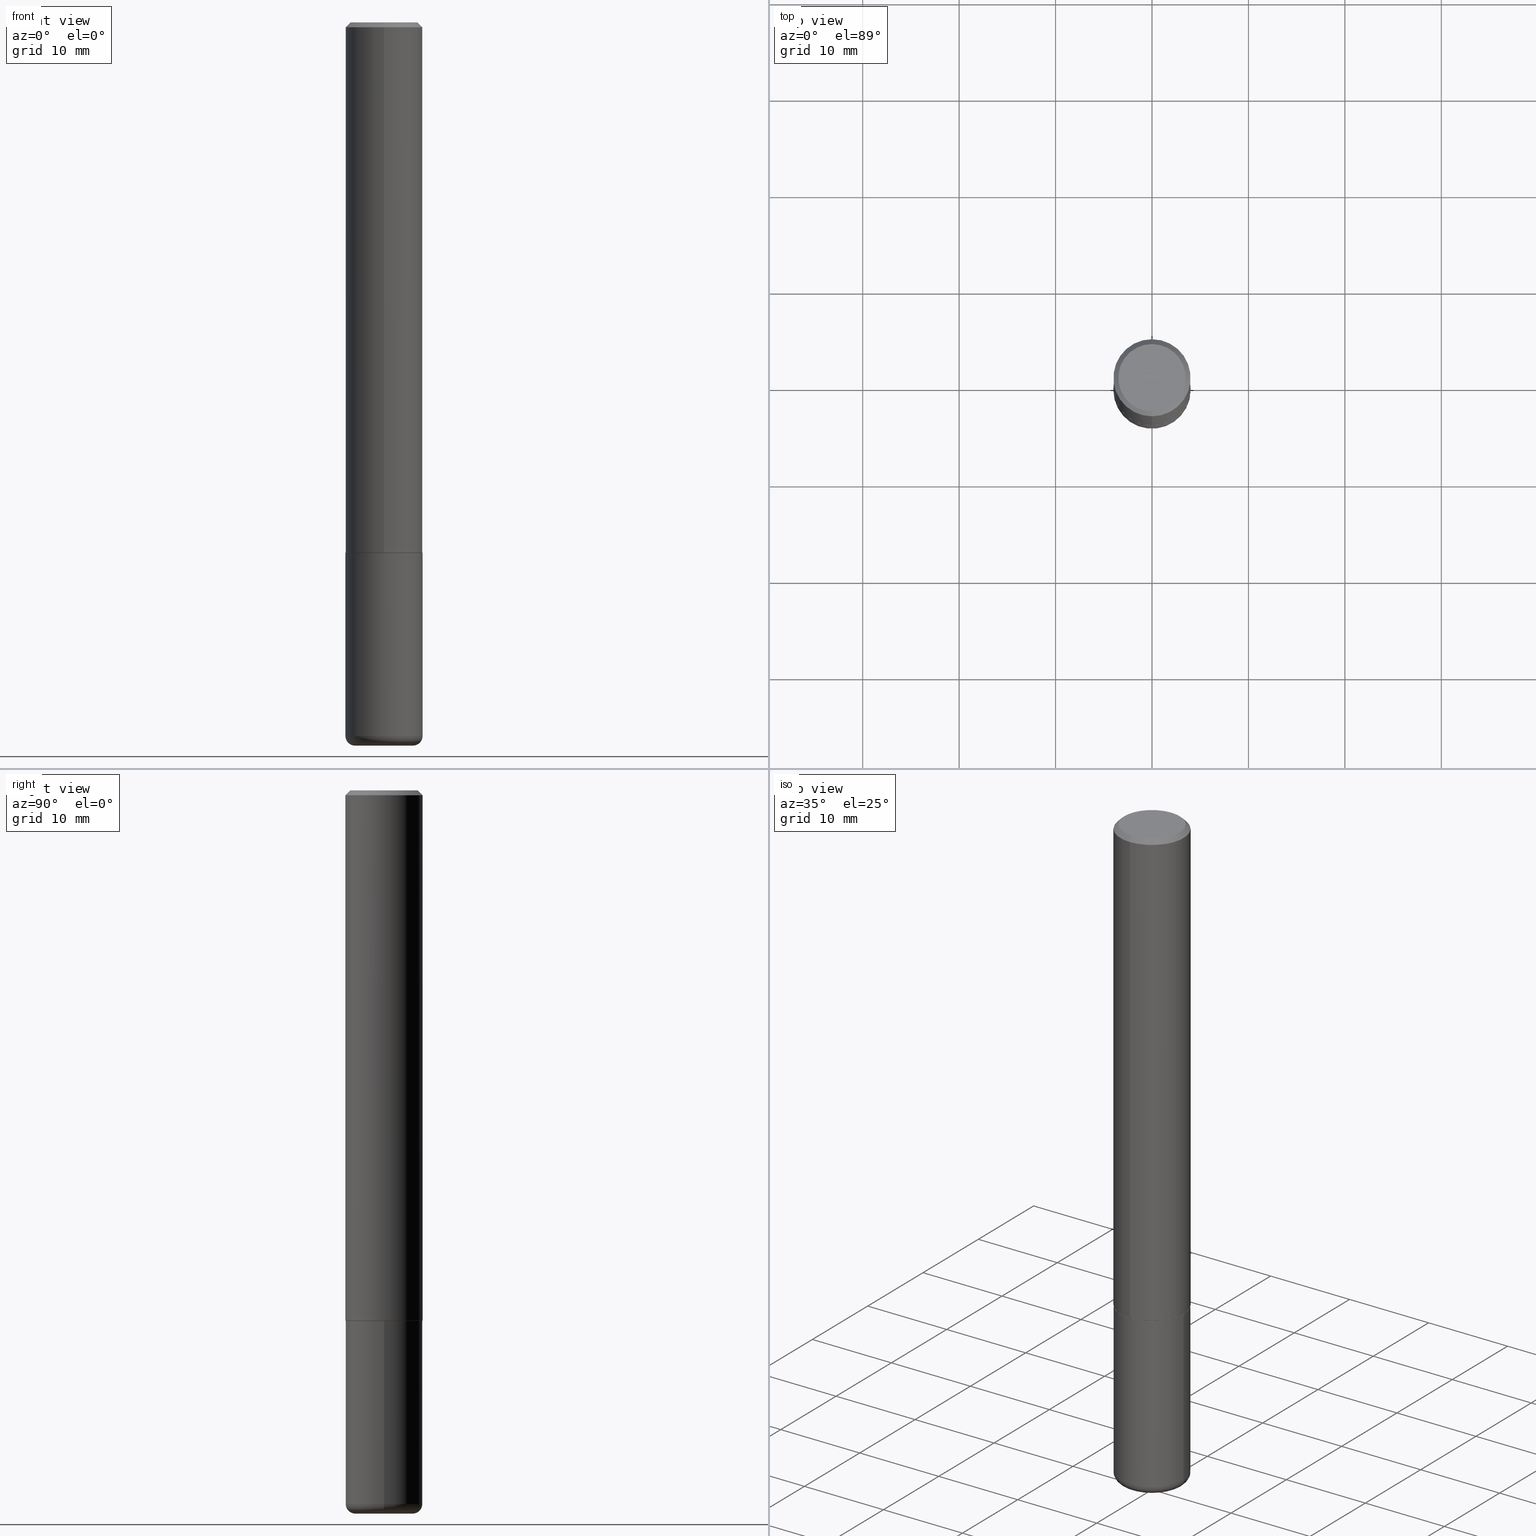
[diagram: canonical four-view strip — front | top / right | iso, engineering-drawing reading convention]
A machine part, canonical four-view strip (front | top / right | iso — engineering-drawing reading convention). The complete STEP part file that produces these views, byte-faithful:
ISO-10303-21;
HEADER;
FILE_DESCRIPTION (( 'STEP AP203' ),
    '1' );
FILE_NAME ('74359.STEP',
    '2024-03-06T15:08:57',
    ( '' ),
    ( '' ),
    'SwSTEP 2.0',
    'SolidWorks 2023',
    '' );
FILE_SCHEMA (( 'CONFIG_CONTROL_DESIGN' ));
ENDSEC;

DATA;
#1 = ORIENTED_EDGE ( 'NONE', *, *, #279, .T. ) ;
#2 = AXIS2_PLACEMENT_3D ( 'NONE', #182, #184, #248 ) ;
#3 = VERTEX_POINT ( 'NONE', #255 ) ;
#4 = APPROVAL ( #273, 'UNSPECIFIED' ) ;
#5 = DIRECTION ( 'NONE',  ( 0.000000000000000000, 0.000000000000000000, 1.000000000000000000 ) ) ;
#6 = CARTESIAN_POINT ( 'NONE',  ( 0.000000000000000000, 0.000000000000000000, 0.000000000000000000 ) ) ;
#7 = SHAPE_DEFINITION_REPRESENTATION ( #225, #159 ) ;
#8 = CYLINDRICAL_SURFACE ( 'NONE', #102, 0.1575000000000000011 ) ;
#9 = DIRECTION ( 'NONE',  ( -2.445468806185136597E-29, 3.491481338843145583E-15, 1.000000000000000000 ) ) ;
#10 = CIRCLE ( 'NONE', #343, 0.1180999999999999966 ) ;
#11 = COORDINATED_UNIVERSAL_TIME_OFFSET ( 5, 0, .BEHIND. ) ;
#12 = AXIS2_PLACEMENT_3D ( 'NONE', #355, #5, #387 ) ;
#13 = FACE_OUTER_BOUND ( 'NONE', #285, .T. ) ;
#14 = DIRECTION ( 'NONE',  ( -1.000000000000000000, 7.105427357601014480E-15, 0.000000000000000000 ) ) ;
#15 = PERSON_AND_ORGANIZATION_ROLE ( 'design_supplier' ) ;
#16 = FACE_OUTER_BOUND ( 'NONE', #386, .T. ) ;
#17 = DIRECTION ( 'NONE',  ( -6.982962677686265133E-15, -1.000000000000000000, 3.469013325287946588E-15 ) ) ;
#18 = DIRECTION ( 'NONE',  ( -2.445468806185136597E-29, 3.491481338843145583E-15, 1.000000000000000000 ) ) ;
#19 = ADVANCED_FACE ( 'NONE', ( #65 ), #319, .T. ) ;
#20 = DIRECTION ( 'NONE',  ( -2.444928043019069804E-29, 3.492255742475281487E-15, 1.000000000000000000 ) ) ;
#21 = AXIS2_PLACEMENT_3D ( 'NONE', #270, #399, #237 ) ;
#22 = ORGANIZATION ( 'UNSPECIFIED', 'UNSPECIFIED', '' ) ;
#23 = DIRECTION ( 'NONE',  ( -2.445468806185136877E-29, 3.491481338843145188E-15, 1.000000000000000000 ) ) ;
#24 = CARTESIAN_POINT ( 'NONE',  ( 7.220980290903470182E-29, -1.030964609733603853E-14, -2.952799999999999869 ) ) ;
#25 = ADVANCED_FACE ( 'NONE', ( #176 ), #396, .T. ) ;
#26 = ORIENTED_EDGE ( 'NONE', *, *, #55, .T. ) ;
#27 = VECTOR ( 'NONE', #47, 39.37007874015748143 ) ;
#28 = EDGE_LOOP ( 'NONE', ( #68, #294, #413, #349 ) ) ;
#29 = CC_DESIGN_PERSON_AND_ORGANIZATION_ASSIGNMENT ( #38, #15, ( #69 ) ) ;
#30 = AXIS2_PLACEMENT_3D ( 'NONE', #275, #278, #404 ) ;
#31 = ORIENTED_EDGE ( 'NONE', *, *, #260, .T. ) ;
#32 = SECURITY_CLASSIFICATION ( '', '', #78 ) ;
#33 = ORIENTED_EDGE ( 'NONE', *, *, #143, .F. ) ;
#34 = ORIENTED_EDGE ( 'NONE', *, *, #51, .F. ) ;
#35 = APPLICATION_PROTOCOL_DEFINITION ( 'international standard', 'config_control_design', 1994, #389 ) ;
#36 = ORIENTED_EDGE ( 'NONE', *, *, #198, .F. ) ;
#37 = ADVANCED_FACE ( 'NONE', ( #120 ), #8, .T. ) ;
#38 = PERSON_AND_ORGANIZATION ( #61, #22 ) ;
#39 = EDGE_LOOP ( 'NONE', ( #288, #161, #33, #415 ) ) ;
#40 = CARTESIAN_POINT ( 'NONE',  ( -1.092833659057847823E-15, -0.1565000000000075497, -2.165399999999999103 ) ) ;
#41 = CARTESIAN_POINT ( 'NONE',  ( -1.080528434649015779E-15, -0.1575000000000000844, -0.01999999999999948347 ) ) ;
#42 = CC_DESIGN_DATE_AND_TIME_ASSIGNMENT ( #236, #362, ( #122 ) ) ;
#43 = PERSON_AND_ORGANIZATION ( #61, #22 ) ;
#44 = DIRECTION ( 'NONE',  ( 1.000000000000000000, -6.982962677686265922E-15, 4.876176775795935232E-29 ) ) ;
#45 = CARTESIAN_POINT ( 'NONE',  ( 0.1575000000000000289, -1.127189835432120758E-14, -2.913399999999999768 ) ) ;
#46 = AXIS2_PLACEMENT_3D ( 'NONE', #141, #207, #79 ) ;
#47 = DIRECTION ( 'NONE',  ( -4.937700262165138110E-15, -0.7071067811866296182, 0.7071067811864654162 ) ) ;
#48 = FACE_OUTER_BOUND ( 'NONE', #226, .T. ) ;
#49 = EDGE_CURVE ( 'NONE', #100, #3, #405, .T. ) ;
#50 = CARTESIAN_POINT ( 'NONE',  ( 4.889856086038147210E-31, -6.984511484950574659E-17, -0.02000000000000003511 ) ) ;
#51 = EDGE_CURVE ( 'NONE', #167, #417, #318, .T. ) ;
#52 = DIRECTION ( 'NONE',  ( -2.445468806185136597E-29, 3.491481338843145583E-15, 1.000000000000000000 ) ) ;
#53 = DIRECTION ( 'NONE',  ( -6.982962677686266711E-15, -1.000000000000000000, 3.491481338843145583E-15 ) ) ;
#54 = CARTESIAN_POINT ( 'NONE',  ( 5.294247184353492784E-29, -7.562130584755974132E-15, -2.165399999999999991 ) ) ;
#55 = EDGE_CURVE ( 'NONE', #321, #323, #145, .T. ) ;
#56 = UNCERTAINTY_MEASURE_WITH_UNIT (LENGTH_MEASURE( 1.000000000000000082E-05 ), #134, 'distance_accuracy_value', 'NONE');
#57 = CARTESIAN_POINT ( 'NONE',  ( 5.291802256310474180E-29, -7.558638329013498276E-15, -2.164399999999999658 ) ) ;
#58 = AXIS2_PLACEMENT_3D ( 'NONE', #304, #307, #14 ) ;
#59 = LOCAL_TIME ( 10, 8, 57.00000000000000000, #262 ) ;
#60 = ADVANCED_FACE ( 'NONE', ( #391 ), #303, .T. ) ;
#61 = PERSON ( 'UNSPECIFIED', 'UNSPECIFIED', 'UNSPECIFIED', ('UNSPECIFIED'), ('UNSPECIFIED'), ('UNSPECIFIED') ) ;
#62 = TOROIDAL_SURFACE ( 'NONE', #245, 0.1180999999999999966, 0.03940000000000005997 ) ;
#63 = ORIENTED_EDGE ( 'NONE', *, *, #279, .F. ) ;
#64 = APPLICATION_PROTOCOL_DEFINITION ( 'international standard', 'config_control_design', 1994, #238 ) ;
#65 = FACE_OUTER_BOUND ( 'NONE', #378, .T. ) ;
#66 = LENGTH_MEASURE_WITH_UNIT ( LENGTH_MEASURE( 0.02539999999999999897 ), #227 );
#67 = AXIS2_PLACEMENT_3D ( 'NONE', #87, #110, #148 ) ;
#68 = ORIENTED_EDGE ( 'NONE', *, *, #266, .T. ) ;
#69 = PRODUCT_DEFINITION_FORMATION_WITH_SPECIFIED_SOURCE ( 'ANY', '', #83, .NOT_KNOWN. ) ;
#70 = DIRECTION ( 'NONE',  ( -2.444928043019069804E-29, 3.492255742475281487E-15, 1.000000000000000000 ) ) ;
#71 = ORIENTED_EDGE ( 'NONE', *, *, #266, .F. ) ;
#72 = DIRECTION ( 'NONE',  ( -6.982962677686264344E-15, -1.000000000000000000, 3.496114991891764787E-15 ) ) ;
#73 = ORIENTED_EDGE ( 'NONE', *, *, #410, .F. ) ;
#74 = PERSON_AND_ORGANIZATION ( #61, #22 ) ;
#75 = ORIENTED_EDGE ( 'NONE', *, *, #210, .F. ) ;
#76 = CIRCLE ( 'NONE', #95, 0.1565000000000000002 ) ;
#77 = APPROVAL_PERSON_ORGANIZATION ( #203, #4, #206 ) ;
#78 = SECURITY_CLASSIFICATION_LEVEL ( 'unclassified' ) ;
#79 = DIRECTION ( 'NONE',  ( -6.982962677686265133E-15, -1.000000000000000000, 3.469013325287946588E-15 ) ) ;
#80 = PERSON_AND_ORGANIZATION_ROLE ( 'creator' ) ;
#81 = DIRECTION ( 'NONE',  ( 2.438088387897960049E-29, -3.491481338843145188E-15, -1.000000000000000000 ) ) ;
#82 = DIRECTION ( 'NONE',  ( 5.024295867788662713E-15, 0.7071067811866345032, 0.7071067811864605313 ) ) ;
#83 = PRODUCT ( '74359', '74359', '', ( #150 ) ) ;
#84 = DIRECTION ( 'NONE',  ( 1.000000000000000000, -6.982962677686271444E-15, 4.883557194083114583E-29 ) ) ;
#85 = CARTESIAN_POINT ( 'NONE',  ( -0.1575000000000000289, -9.052976923763463288E-15, -2.913399999999999768 ) ) ;
#86 = AXIS2_PLACEMENT_3D ( 'NONE', #54, #187, #155 ) ;
#87 = CARTESIAN_POINT ( 'NONE',  ( 5.294247184353492784E-29, -7.562130584755974132E-15, -2.165399999999999991 ) ) ;
#88 = DESIGN_CONTEXT ( 'detailed design', #389, 'design' ) ;
#89 = CARTESIAN_POINT ( 'NONE',  ( 4.889856086038147210E-31, -6.984511484950574659E-17, -0.02000000000000003511 ) ) ;
#90 = DIRECTION ( 'NONE',  ( 4.937700262164546464E-15, 0.7071067811865447972, -0.7071067811865500152 ) ) ;
#91 = DIRECTION ( 'NONE',  ( -2.444928043019069524E-29, 3.492255742475281487E-15, 1.000000000000000000 ) ) ;
#92 = DIRECTION ( 'NONE',  ( 1.000000000000000000, -6.982962677686267499E-15, 0.000000000000000000 ) ) ;
#93 = ORIENTED_EDGE ( 'NONE', *, *, #301, .F. ) ;
#94 = DIRECTION ( 'NONE',  ( -6.982962677686264344E-15, -1.000000000000000000, 3.496114991891764787E-15 ) ) ;
#95 = AXIS2_PLACEMENT_3D ( 'NONE', #397, #409, #217 ) ;
#96 = AXIS2_PLACEMENT_3D ( 'NONE', #401, #52, #375 ) ;
#97 = ADVANCED_FACE ( 'NONE', ( #13 ), #334, .T. ) ;
#98 = ORIENTED_EDGE ( 'NONE', *, *, #271, .F. ) ;
#99 = ADVANCED_FACE ( 'NONE', ( #16 ), #358, .T. ) ;
#100 = VERTEX_POINT ( 'NONE', #330 ) ;
#101 = ORIENTED_EDGE ( 'NONE', *, *, #55, .F. ) ;
#102 = AXIS2_PLACEMENT_3D ( 'NONE', #306, #115, #44 ) ;
#103 = ORIENTED_EDGE ( 'NONE', *, *, #260, .F. ) ;
#104 = ADVANCED_FACE ( 'NONE', ( #151 ), #219, .T. ) ;
#105 = CARTESIAN_POINT ( 'NONE',  ( 4.889856086038147210E-31, -6.984511484950574659E-17, -0.02000000000000003511 ) ) ;
#106 = ORIENTED_EDGE ( 'NONE', *, *, #301, .T. ) ;
#107 = MANIFOLD_SOLID_BREP ( 'Body-Move/Copy2[2]', #158 ) ;
#108 = ORIENTED_EDGE ( 'NONE', *, *, #410, .T. ) ;
#109 = APPROVAL_DATE_TIME ( #327, #412 ) ;
#110 = DIRECTION ( 'NONE',  ( -2.444928043019069804E-29, 3.492255742475281487E-15, 1.000000000000000000 ) ) ;
#111 = FACE_OUTER_BOUND ( 'NONE', #28, .T. ) ;
#112 = AXIS2_PLACEMENT_3D ( 'NONE', #57, #20, #17 ) ;
#113 = PERSON_AND_ORGANIZATION ( #61, #22 ) ;
#114 = CARTESIAN_POINT ( 'NONE',  ( 0.1180999999999999966, -1.099676962482036915E-14, -2.913399999999999768 ) ) ;
#115 = DIRECTION ( 'NONE',  ( -2.445468806185136597E-29, 3.491481338843145583E-15, 1.000000000000000000 ) ) ;
#116 = CARTESIAN_POINT ( 'NONE',  ( 9.601573681818600950E-16, 0.1374999999999997891, -3.798218808232814543E-16 ) ) ;
#117 = PERSON_AND_ORGANIZATION_ROLE ( 'design_owner' ) ;
#118 = DIRECTION ( 'NONE',  ( 2.444928043019069804E-29, -3.492255742475281487E-15, -1.000000000000000000 ) ) ;
#119 = CARTESIAN_POINT ( 'NONE',  ( -1.092833659057847823E-15, -0.1565000000000075497, -2.165399999999999103 ) ) ;
#120 = FACE_OUTER_BOUND ( 'NONE', #261, .T. ) ;
#121 = AXIS2_PLACEMENT_3D ( 'NONE', #249, #152, #272 ) ;
#122 = PRODUCT_DEFINITION ( 'UNKNOWN', '', #69, #88 ) ;
#123 = CARTESIAN_POINT ( 'NONE',  ( 5.294247184353492784E-29, -7.562130584755974132E-15, -2.165399999999999991 ) ) ;
#124 = DIRECTION ( 'NONE',  ( -2.444928043019069804E-29, 3.492255742475281487E-15, 1.000000000000000000 ) ) ;
#125 = LINE ( 'NONE', #41, #350 ) ;
#126 = ADVANCED_FACE ( 'NONE', ( #174 ), #267, .F. ) ;
#127 = LOCAL_TIME ( 10, 8, 57.00000000000000000, #11 ) ;
#128 = ADVANCED_FACE ( 'NONE', ( #360 ), #62, .T. ) ;
#129 = VERTEX_POINT ( 'NONE', #209 ) ;
#130 = AXIS2_PLACEMENT_3D ( 'NONE', #244, #363, #298 ) ;
#131 = CC_DESIGN_APPROVAL ( #412, ( #69 ) ) ;
#132 = ORIENTED_EDGE ( 'NONE', *, *, #379, .F. ) ;
#133 = VERTEX_POINT ( 'NONE', #336 ) ;
#134 =( CONVERSION_BASED_UNIT ( 'INCH', #66 ) LENGTH_UNIT ( ) NAMED_UNIT ( #166 ) );
#135 = ORIENTED_EDGE ( 'NONE', *, *, #216, .F. ) ;
#136 = EDGE_CURVE ( 'NONE', #348, #3, #308, .T. ) ;
#137 = AXIS2_PLACEMENT_3D ( 'NONE', #213, #313, #340 ) ;
#138 = ORIENTED_EDGE ( 'NONE', *, *, #373, .F. ) ;
#139 = LOCAL_TIME ( 10, 8, 57.00000000000000000, #269 ) ;
#140 = VERTEX_POINT ( 'NONE', #183 ) ;
#141 = CARTESIAN_POINT ( 'NONE',  ( 5.291802256310474180E-29, -7.558638329013498276E-15, -2.164399999999999658 ) ) ;
#142 = APPROVAL_DATE_TIME ( #390, #162 ) ;
#143 = EDGE_CURVE ( 'NONE', #323, #321, #192, .T. ) ;
#144 = DIRECTION ( 'NONE',  ( -1.000000000000000000, 6.982962677686265922E-15, -4.876176775795935793E-29 ) ) ;
#145 = CIRCLE ( 'NONE', #293, 0.1575000000000000011 ) ;
#146 = FACE_OUTER_BOUND ( 'NONE', #289, .T. ) ;
#147 = DATE_AND_TIME ( #365, #127 ) ;
#148 = DIRECTION ( 'NONE',  ( -6.982962677686265922E-15, -1.000000000000000000, 3.491179544618866730E-15 ) ) ;
#149 = CYLINDRICAL_SURFACE ( 'NONE', #2, 0.1575000000000001676 ) ;
#150 = MECHANICAL_CONTEXT ( 'NONE', #238, 'mechanical' ) ;
#151 = FACE_OUTER_BOUND ( 'NONE', #418, .T. ) ;
#152 = DIRECTION ( 'NONE',  ( -2.445468806185136597E-29, 3.491481338843145583E-15, 1.000000000000000000 ) ) ;
#153 = DIRECTION ( 'NONE',  ( -2.445468806185136597E-29, 3.491481338843145583E-15, 1.000000000000000000 ) ) ;
#154 = VECTOR ( 'NONE', #342, 39.37007874015748143 ) ;
#155 = DIRECTION ( 'NONE',  ( -6.982962677686265922E-15, -1.000000000000000000, 3.491179544618866730E-15 ) ) ;
#156 = CARTESIAN_POINT ( 'NONE',  ( -0.1575000000000000011, 1.119104808822157801E-15, -7.747322767151475583E-30 ) ) ;
#157 = DIRECTION ( 'NONE',  ( 1.000000000000000000, -6.982962677686268288E-15, 0.000000000000000000 ) ) ;
#158 = CLOSED_SHELL ( 'NONE', ( #97, #392, #104, #99, #239, #19, #126, #383 ) ) ;
#159 = ADVANCED_BREP_SHAPE_REPRESENTATION ( '74359', ( #252, #107, #12 ), #191 ) ;
#160 = CC_DESIGN_SECURITY_CLASSIFICATION ( #32, ( #69 ) ) ;
#161 = ORIENTED_EDGE ( 'NONE', *, *, #214, .T. ) ;
#162 = APPROVAL ( #295, 'UNSPECIFIED' ) ;
#163 = VECTOR ( 'NONE', #91, 39.37007874015748143 ) ;
#164 = EDGE_LOOP ( 'NONE', ( #138, #199 ) ) ;
#165 = ORIENTED_EDGE ( 'NONE', *, *, #198, .T. ) ;
#166 = DIMENSIONAL_EXPONENTS ( 1.000000000000000000, 0.000000000000000000, 0.000000000000000000, 0.000000000000000000, 0.000000000000000000, 0.000000000000000000, 0.000000000000000000 ) ;
#167 = VERTEX_POINT ( 'NONE', #406 ) ;
#168 = DATE_TIME_ROLE ( 'classification_date' ) ;
#169 = CIRCLE ( 'NONE', #112, 0.1575000000000003064 ) ;
#170 = AXIS2_PLACEMENT_3D ( 'NONE', #116, #345, #337 ) ;
#171 = ORIENTED_EDGE ( 'NONE', *, *, #51, .T. ) ;
#172 = LOCAL_TIME ( 10, 8, 57.00000000000000000, #333 ) ;
#173 = CALENDAR_DATE ( 2024, 6, 3 ) ;
#174 = FACE_OUTER_BOUND ( 'NONE', #164, .T. ) ;
#175 = APPROVAL_DATE_TIME ( #297, #4 ) ;
#176 = FACE_OUTER_BOUND ( 'NONE', #223, .T. ) ;
#177 = EDGE_CURVE ( 'NONE', #417, #140, #247, .T. ) ;
#178 = DIRECTION ( 'NONE',  ( -4.851104656540962697E-15, -0.7071067811865497932, -0.7071067811865451302 ) ) ;
#179 = COORDINATED_UNIVERSAL_TIME_OFFSET ( 5, 0, .BEHIND. ) ;
#180 = DIRECTION ( 'NONE',  ( 1.000000000000000000, -6.982962677686261977E-15, 0.000000000000000000 ) ) ;
#181 = AXIS2_PLACEMENT_3D ( 'NONE', #403, #265, #395 ) ;
#182 = CARTESIAN_POINT ( 'NONE',  ( 0.000000000000000000, 0.000000000000000000, 0.000000000000000000 ) ) ;
#183 = CARTESIAN_POINT ( 'NONE',  ( 1.099816621735587480E-15, 0.1574999999999999456, -0.02000000000000058328 ) ) ;
#184 = DIRECTION ( 'NONE',  ( -2.444928043019069804E-29, 3.492255742475281487E-15, 1.000000000000000000 ) ) ;
#185 = DIRECTION ( 'NONE',  ( -2.445468806185136597E-29, 3.491481338843145583E-15, 1.000000000000000000 ) ) ;
#186 = DIRECTION ( 'NONE',  ( -2.445468806185136597E-29, 3.491481338843145583E-15, 1.000000000000000000 ) ) ;
#187 = DIRECTION ( 'NONE',  ( -2.444928043019069804E-29, 3.492255742475281487E-15, 1.000000000000000000 ) ) ;
#188 = AXIS2_PLACEMENT_3D ( 'NONE', #205, #81, #144 ) ;
#189 = EDGE_CURVE ( 'NONE', #100, #140, #215, .T. ) ;
#190 = CARTESIAN_POINT ( 'NONE',  ( -1.099816621735587875E-15, -0.1575000000000001676, 5.500302794398574170E-16 ) ) ;
#191 =( GEOMETRIC_REPRESENTATION_CONTEXT ( 3 ) GLOBAL_UNCERTAINTY_ASSIGNED_CONTEXT ( ( #56 ) ) GLOBAL_UNIT_ASSIGNED_CONTEXT ( ( #134, #322, #380 ) ) REPRESENTATION_CONTEXT ( 'NONE', 'WORKASPACE' ) );
#192 = CIRCLE ( 'NONE', #414, 0.1575000000000000011 ) ;
#193 = VERTEX_POINT ( 'NONE', #310 ) ;
#194 = CARTESIAN_POINT ( 'NONE',  ( 5.294247184353492784E-29, -7.562130584755974132E-15, -2.165399999999999991 ) ) ;
#195 = CIRCLE ( 'NONE', #96, 0.1180999999999999966 ) ;
#196 = ORIENTED_EDGE ( 'NONE', *, *, #214, .F. ) ;
#197 = ORIENTED_EDGE ( 'NONE', *, *, #49, .T. ) ;
#198 = EDGE_CURVE ( 'NONE', #321, #193, #280, .T. ) ;
#199 = ORIENTED_EDGE ( 'NONE', *, *, #204, .F. ) ;
#200 = CALENDAR_DATE ( 2024, 6, 3 ) ;
#201 = CIRCLE ( 'NONE', #250, 0.1575000000000000289 ) ;
#202 = EDGE_LOOP ( 'NONE', ( #218, #31 ) ) ;
#203 = PERSON_AND_ORGANIZATION ( #61, #22 ) ;
#204 = EDGE_CURVE ( 'NONE', #381, #348, #222, .T. ) ;
#205 = CARTESIAN_POINT ( 'NONE',  ( 7.220980290903470182E-29, -1.030964609733603853E-14, -2.952799999999999869 ) ) ;
#206 = APPROVAL_ROLE ( '' ) ;
#207 = DIRECTION ( 'NONE',  ( -2.444928043019069804E-29, 3.492255742475281487E-15, 1.000000000000000000 ) ) ;
#208 = CARTESIAN_POINT ( 'NONE',  ( 0.1575000000000000011, -1.099816621735586889E-15, 7.679978421878598033E-30 ) ) ;
#209 = CARTESIAN_POINT ( 'NONE',  ( 0.1180999999999999966, -1.113433398957078679E-14, -2.952799999999999869 ) ) ;
#210 = EDGE_CURVE ( 'NONE', #323, #232, #243, .T. ) ;
#211 = DIRECTION ( 'NONE',  ( -2.445468806185136597E-29, 3.491481338843145583E-15, 1.000000000000000000 ) ) ;
#212 = DIRECTION ( 'NONE',  ( -2.444928043019069243E-29, 3.492255742475281487E-15, 1.000000000000000000 ) ) ;
#213 = CARTESIAN_POINT ( 'NONE',  ( -4.907620139431751550E-45, 7.009885081384458012E-31, 2.007265675341379917E-16 ) ) ;
#214 = EDGE_CURVE ( 'NONE', #325, #321, #315, .T. ) ;
#215 = LINE ( 'NONE', #296, #258 ) ;
#216 = EDGE_CURVE ( 'NONE', #417, #167, #311, .T. ) ;
#217 = DIRECTION ( 'NONE',  ( -6.982962677686265922E-15, -1.000000000000000000, 3.491179544618866730E-15 ) ) ;
#218 = ORIENTED_EDGE ( 'NONE', *, *, #271, .T. ) ;
#219 = CONICAL_SURFACE ( 'NONE', #21, 0.1575000000000000289, 0.7853981633974481680 ) ;
#220 = CARTESIAN_POINT ( 'NONE',  ( 1.111999381464609449E-15, 0.1564999999999924507, -2.165400000000000436 ) ) ;
#221 = CC_DESIGN_DATE_AND_TIME_ASSIGNMENT ( #147, #168, ( #32 ) ) ;
#222 = CIRCLE ( 'NONE', #86, 0.1565000000000000002 ) ;
#223 = EDGE_LOOP ( 'NONE', ( #36, #26, #257, #103 ) ) ;
#224 = ORIENTED_EDGE ( 'NONE', *, *, #373, .T. ) ;
#225 = PRODUCT_DEFINITION_SHAPE ( 'NONE', 'NONE',  #122 ) ;
#226 = EDGE_LOOP ( 'NONE', ( #196, #106, #230, #101 ) ) ;
#227 =( LENGTH_UNIT ( ) NAMED_UNIT ( * ) SI_UNIT ( $, .METRE. ) );
#228 = CIRCLE ( 'NONE', #312, 0.1575000000000000289 ) ;
#229 = ORIENTED_EDGE ( 'NONE', *, *, #49, .F. ) ;
#230 = ORIENTED_EDGE ( 'NONE', *, *, #408, .T. ) ;
#231 = APPROVAL_ROLE ( '' ) ;
#232 = VERTEX_POINT ( 'NONE', #240 ) ;
#233 = VECTOR ( 'NONE', #90, 39.37007874015748854 ) ;
#234 = APPROVAL_PERSON_ORGANIZATION ( #43, #412, #231 ) ;
#235 = DIRECTION ( 'NONE',  ( -2.444928043019069524E-29, 3.492255742475281487E-15, 1.000000000000000000 ) ) ;
#236 = DATE_AND_TIME ( #329, #139 ) ;
#237 = DIRECTION ( 'NONE',  ( 6.982962677686264344E-15, 1.000000000000000000, -3.496114991891764787E-15 ) ) ;
#238 = APPLICATION_CONTEXT ( 'configuration controlled 3d designs of mechanical parts and assemblies' ) ;
#239 = ADVANCED_FACE ( 'NONE', ( #370 ), #149, .T. ) ;
#240 = CARTESIAN_POINT ( 'NONE',  ( 0.1575000000000000011, -8.660270312866534114E-15, -2.165399999999999991 ) ) ;
#241 = PERSON_AND_ORGANIZATION_ROLE ( 'classification_officer' ) ;
#242 = DIRECTION ( 'NONE',  ( 6.982962677686264344E-15, 1.000000000000000000, -3.496114991891764787E-15 ) ) ;
#243 = LINE ( 'NONE', #208, #154 ) ;
#244 = CARTESIAN_POINT ( 'NONE',  ( -4.907620139431751550E-45, 7.009885081384458012E-31, 2.007265675341379917E-16 ) ) ;
#245 = AXIS2_PLACEMENT_3D ( 'NONE', #339, #185, #84 ) ;
#246 = CARTESIAN_POINT ( 'NONE',  ( 7.124628819939776708E-29, -1.017208173258561931E-14, -2.913399999999999768 ) ) ;
#247 = LINE ( 'NONE', #371, #233 ) ;
#248 = DIRECTION ( 'NONE',  ( -6.982962677686265133E-15, -1.000000000000000000, 3.492255742475281487E-15 ) ) ;
#249 = CARTESIAN_POINT ( 'NONE',  ( 5.295418152913294345E-29, -7.560453691130947423E-15, -2.165399999999999991 ) ) ;
#250 = AXIS2_PLACEMENT_3D ( 'NONE', #89, #124, #94 ) ;
#251 = LOCAL_TIME ( 10, 8, 57.00000000000000000, #179 ) ;
#252 = MANIFOLD_SOLID_BREP ( 'Body-Move/Copy2[1]', #394 ) ;
#253 = CIRCLE ( 'NONE', #121, 0.1575000000000000011 ) ;
#254 = CC_DESIGN_PERSON_AND_ORGANIZATION_ASSIGNMENT ( #305, #241, ( #32 ) ) ;
#255 = CARTESIAN_POINT ( 'NONE',  ( -1.099816621735536007E-15, -0.1575000000000078559, -2.164399999999999213 ) ) ;
#256 = ORIENTED_EDGE ( 'NONE', *, *, #347, .T. ) ;
#257 = ORIENTED_EDGE ( 'NONE', *, *, #210, .T. ) ;
#258 = VECTOR ( 'NONE', #235, 39.37007874015748143 ) ;
#259 = ORIENTED_EDGE ( 'NONE', *, *, #177, .F. ) ;
#260 = EDGE_CURVE ( 'NONE', #193, #232, #286, .T. ) ;
#261 = EDGE_LOOP ( 'NONE', ( #384, #165, #98, #75 ) ) ;
#262 = COORDINATED_UNIVERSAL_TIME_OFFSET ( 5, 0, .BEHIND. ) ;
#263 = DIRECTION ( 'NONE',  ( -6.982962677686265922E-15, -1.000000000000000000, 3.491179544618866730E-15 ) ) ;
#264 = VECTOR ( 'NONE', #23, 39.37007874015748143 ) ;
#265 = DIRECTION ( 'NONE',  ( -2.444928043019069804E-29, 3.492255742475281487E-15, 1.000000000000000000 ) ) ;
#266 = EDGE_CURVE ( 'NONE', #3, #100, #169, .T. ) ;
#267 = PLANE ( 'NONE',  #326 ) ;
#268 = PLANE ( 'NONE',  #170 ) ;
#269 = COORDINATED_UNIVERSAL_TIME_OFFSET ( 5, 0, .BEHIND. ) ;
#270 = CARTESIAN_POINT ( 'NONE',  ( 4.889856086038147210E-31, -6.984511484950574659E-17, -0.02000000000000003511 ) ) ;
#271 = EDGE_CURVE ( 'NONE', #232, #193, #253, .T. ) ;
#272 = DIRECTION ( 'NONE',  ( 1.000000000000000000, -6.982962677686268288E-15, 0.000000000000000000 ) ) ;
#273 = APPROVAL_STATUS ( 'not_yet_approved' ) ;
#274 = CARTESIAN_POINT ( 'NONE',  ( 7.124628819939776708E-29, -1.017208173258561931E-14, -2.913399999999999768 ) ) ;
#275 = CARTESIAN_POINT ( 'NONE',  ( 5.295418152913294345E-29, -7.560453691130947423E-15, -2.165399999999999991 ) ) ;
#276 = DIRECTION ( 'NONE',  ( 1.000000000000000000, -6.982962677686261977E-15, 0.000000000000000000 ) ) ;
#277 = AXIS2_PLACEMENT_3D ( 'NONE', #114, #53, #92 ) ;
#278 = DIRECTION ( 'NONE',  ( 2.438088387897960049E-29, -3.491481338843145188E-15, -1.000000000000000000 ) ) ;
#279 = EDGE_CURVE ( 'NONE', #381, #100, #407, .T. ) ;
#280 = LINE ( 'NONE', #156, #264 ) ;
#281 = EDGE_CURVE ( 'NONE', #129, #325, #10, .T. ) ;
#282 = CARTESIAN_POINT ( 'NONE',  ( -0.1180999999999999966, -9.261736025083411415E-15, -2.952799999999999869 ) ) ;
#283 = ORIENTED_EDGE ( 'NONE', *, *, #177, .T. ) ;
#284 = AXIS2_PLACEMENT_3D ( 'NONE', #194, #317, #263 ) ;
#285 = EDGE_LOOP ( 'NONE', ( #224, #1, #71, #346 ) ) ;
#286 = CIRCLE ( 'NONE', #368, 0.1575000000000000011 ) ;
#287 = CC_DESIGN_APPROVAL ( #4, ( #32 ) ) ;
#288 = ORIENTED_EDGE ( 'NONE', *, *, #281, .T. ) ;
#289 = EDGE_LOOP ( 'NONE', ( #388, #171 ) ) ;
#290 = ORIENTED_EDGE ( 'NONE', *, *, #379, .T. ) ;
#291 = CC_DESIGN_PERSON_AND_ORGANIZATION_ASSIGNMENT ( #74, #80, ( #69 ) ) ;
#292 = PERSON_AND_ORGANIZATION_ROLE ( 'creator' ) ;
#293 = AXIS2_PLACEMENT_3D ( 'NONE', #331, #153, #180 ) ;
#294 = ORIENTED_EDGE ( 'NONE', *, *, #189, .T. ) ;
#295 = APPROVAL_STATUS ( 'not_yet_approved' ) ;
#296 = CARTESIAN_POINT ( 'NONE',  ( 1.119104808822158787E-15, 0.1575000000000001676, -5.500302794398574170E-16 ) ) ;
#297 = DATE_AND_TIME ( #173, #172 ) ;
#298 = DIRECTION ( 'NONE',  ( -6.982962677686265922E-15, -1.000000000000000000, 3.492255742475281487E-15 ) ) ;
#299 = CARTESIAN_POINT ( 'NONE',  ( 1.115552095143411136E-15, 0.1564999999999924507, -2.165400000000000436 ) ) ;
#300 = PERSON_AND_ORGANIZATION ( #61, #22 ) ;
#301 = EDGE_CURVE ( 'NONE', #325, #129, #195, .T. ) ;
#302 = AXIS2_PLACEMENT_3D ( 'NONE', #246, #186, #309 ) ;
#303 = PLANE ( 'NONE',  #188 ) ;
#304 = CARTESIAN_POINT ( 'NONE',  ( -0.1180999999999999966, -9.332930761652941905E-15, -2.913399999999999768 ) ) ;
#305 = PERSON_AND_ORGANIZATION ( #61, #22 ) ;
#306 = CARTESIAN_POINT ( 'NONE',  ( 0.000000000000000000, 0.000000000000000000, 0.000000000000000000 ) ) ;
#307 = DIRECTION ( 'NONE',  ( 7.105427357601001859E-15, 1.000000000000000000, -3.491481338843145583E-15 ) ) ;
#308 = LINE ( 'NONE', #40, #27 ) ;
#309 = DIRECTION ( 'NONE',  ( 1.000000000000000000, -6.982962677686271444E-15, 4.883557194083114583E-29 ) ) ;
#310 = CARTESIAN_POINT ( 'NONE',  ( -0.1575000000000000011, -7.747162903036124976E-15, -2.165399999999999991 ) ) ;
#311 = CIRCLE ( 'NONE', #137, 0.1374999999999997891 ) ;
#312 = AXIS2_PLACEMENT_3D ( 'NONE', #105, #70, #72 ) ;
#313 = DIRECTION ( 'NONE',  ( -2.444928043019069804E-29, 3.492255742475281487E-15, 1.000000000000000000 ) ) ;
#314 = CC_DESIGN_PERSON_AND_ORGANIZATION_ASSIGNMENT ( #300, #117, ( #83 ) ) ;
#315 = CIRCLE ( 'NONE', #58, 0.03940000000000005997 ) ;
#316 = EDGE_LOOP ( 'NONE', ( #357, #93 ) ) ;
#317 = DIRECTION ( 'NONE',  ( -2.444928043019069804E-29, 3.492255742475281487E-15, 1.000000000000000000 ) ) ;
#318 = CIRCLE ( 'NONE', #130, 0.1374999999999997891 ) ;
#319 = CONICAL_SURFACE ( 'NONE', #284, 0.1565000000000000002, 0.7853981633975678500 ) ;
#320 = CARTESIAN_POINT ( 'NONE',  ( 1.029986994958723788E-15, 0.1374999999999997891, -2.794585970562124091E-16 ) ) ;
#321 = VERTEX_POINT ( 'NONE', #85 ) ;
#322 =( NAMED_UNIT ( * ) PLANE_ANGLE_UNIT ( ) SI_UNIT ( $, .RADIAN. ) );
#323 = VERTEX_POINT ( 'NONE', #45 ) ;
#324 = PERSON_AND_ORGANIZATION ( #61, #22 ) ;
#325 = VERTEX_POINT ( 'NONE', #282 ) ;
#326 = AXIS2_PLACEMENT_3D ( 'NONE', #123, #212, #402 ) ;
#327 = DATE_AND_TIME ( #359, #251 ) ;
#328 = ORIENTED_EDGE ( 'NONE', *, *, #189, .F. ) ;
#329 = CALENDAR_DATE ( 2024, 6, 3 ) ;
#330 = CARTESIAN_POINT ( 'NONE',  ( 1.119104808822185805E-15, 0.1574999999999927569, -2.164400000000000102 ) ) ;
#331 = CARTESIAN_POINT ( 'NONE',  ( 7.124628819939776708E-29, -1.017208173258561931E-14, -2.913399999999999768 ) ) ;
#332 = DIRECTION ( 'NONE',  ( 1.000000000000000000, -6.982962677686273021E-15, 0.000000000000000000 ) ) ;
#333 = COORDINATED_UNIVERSAL_TIME_OFFSET ( 5, 0, .BEHIND. ) ;
#334 = CONICAL_SURFACE ( 'NONE', #67, 0.1565000000000000002, 0.7853981633975678500 ) ;
#335 = CC_DESIGN_APPROVAL ( #162, ( #122 ) ) ;
#336 = CARTESIAN_POINT ( 'NONE',  ( -1.080528434649015779E-15, -0.1575000000000000844, -0.01999999999999948347 ) ) ;
#337 = DIRECTION ( 'NONE',  ( 6.982962677686265922E-15, 1.000000000000000000, -3.492255742475281487E-15 ) ) ;
#338 = PLANE ( 'NONE',  #30 ) ;
#339 = CARTESIAN_POINT ( 'NONE',  ( 7.124628819939776708E-29, -1.017208173258561931E-14, -2.913399999999999768 ) ) ;
#340 = DIRECTION ( 'NONE',  ( -6.982962677686265922E-15, -1.000000000000000000, 3.492255742475281487E-15 ) ) ;
#341 = DIRECTION ( 'NONE',  ( -2.445468806185136597E-29, 3.491481338843145583E-15, 1.000000000000000000 ) ) ;
#342 = DIRECTION ( 'NONE',  ( -2.445468806185136877E-29, 3.491481338843145188E-15, 1.000000000000000000 ) ) ;
#343 = AXIS2_PLACEMENT_3D ( 'NONE', #24, #9, #332 ) ;
#344 = VECTOR ( 'NONE', #82, 39.37007874015748143 ) ;
#345 = DIRECTION ( 'NONE',  ( 2.444928043019069243E-29, -3.492255742475281487E-15, -1.000000000000000000 ) ) ;
#346 = ORIENTED_EDGE ( 'NONE', *, *, #136, .F. ) ;
#347 = EDGE_CURVE ( 'NONE', #133, #140, #201, .T. ) ;
#348 = VERTEX_POINT ( 'NONE', #119 ) ;
#349 = ORIENTED_EDGE ( 'NONE', *, *, #352, .F. ) ;
#350 = VECTOR ( 'NONE', #178, 39.37007874015748854 ) ;
#351 = CC_DESIGN_PERSON_AND_ORGANIZATION_ASSIGNMENT ( #113, #292, ( #122 ) ) ;
#352 = EDGE_CURVE ( 'NONE', #3, #133, #372, .T. ) ;
#353 = ORIENTED_EDGE ( 'NONE', *, *, #136, .T. ) ;
#354 = ORIENTED_EDGE ( 'NONE', *, *, #352, .T. ) ;
#355 = CARTESIAN_POINT ( 'NONE',  ( 0.000000000000000000, 0.000000000000000000, 0.000000000000000000 ) ) ;
#356 = ADVANCED_FACE ( 'NONE', ( #366 ), #338, .F. ) ;
#357 = ORIENTED_EDGE ( 'NONE', *, *, #281, .F. ) ;
#358 = CONICAL_SURFACE ( 'NONE', #385, 0.1575000000000000289, 0.7853981633974481680 ) ;
#359 = CALENDAR_DATE ( 2024, 6, 3 ) ;
#360 = FACE_OUTER_BOUND ( 'NONE', #39, .T. ) ;
#361 = CYLINDRICAL_SURFACE ( 'NONE', #181, 0.1575000000000001676 ) ;
#362 = DATE_TIME_ROLE ( 'creation_date' ) ;
#363 = DIRECTION ( 'NONE',  ( -2.444928043019069804E-29, 3.492255742475281487E-15, 1.000000000000000000 ) ) ;
#364 = CARTESIAN_POINT ( 'NONE',  ( 5.295418152913294345E-29, -7.560453691130947423E-15, -2.165399999999999991 ) ) ;
#365 = CALENDAR_DATE ( 2024, 6, 3 ) ;
#366 = FACE_OUTER_BOUND ( 'NONE', #202, .T. ) ;
#367 = ADVANCED_FACE ( 'NONE', ( #48 ), #377, .T. ) ;
#368 = AXIS2_PLACEMENT_3D ( 'NONE', #364, #211, #157 ) ;
#369 = DIRECTION ( 'NONE',  ( 1.000000000000000000, -6.982962677686265922E-15, 4.876176775795935232E-29 ) ) ;
#370 = FACE_OUTER_BOUND ( 'NONE', #382, .T. ) ;
#371 = CARTESIAN_POINT ( 'NONE',  ( 1.099816621735587480E-15, 0.1574999999999999456, -0.02000000000000058328 ) ) ;
#372 = LINE ( 'NONE', #190, #163 ) ;
#373 = EDGE_CURVE ( 'NONE', #348, #381, #76, .T. ) ;
#374 = ORIENTED_EDGE ( 'NONE', *, *, #204, .T. ) ;
#375 = DIRECTION ( 'NONE',  ( 1.000000000000000000, -6.982962677686273021E-15, 0.000000000000000000 ) ) ;
#376 = AXIS2_PLACEMENT_3D ( 'NONE', #6, #341, #369 ) ;
#377 = TOROIDAL_SURFACE ( 'NONE', #302, 0.1180999999999999966, 0.03940000000000005997 ) ;
#378 = EDGE_LOOP ( 'NONE', ( #63, #374, #353, #229 ) ) ;
#379 = EDGE_CURVE ( 'NONE', #167, #133, #125, .T. ) ;
#380 =( NAMED_UNIT ( * ) SI_UNIT ( $, .STERADIAN. ) SOLID_ANGLE_UNIT ( ) );
#381 = VERTEX_POINT ( 'NONE', #299 ) ;
#382 = EDGE_LOOP ( 'NONE', ( #328, #197, #354, #73 ) ) ;
#383 = ADVANCED_FACE ( 'NONE', ( #146 ), #268, .F. ) ;
#384 = ORIENTED_EDGE ( 'NONE', *, *, #143, .T. ) ;
#385 = AXIS2_PLACEMENT_3D ( 'NONE', #50, #118, #242 ) ;
#386 = EDGE_LOOP ( 'NONE', ( #132, #135, #283, #108 ) ) ;
#387 = DIRECTION ( 'NONE',  ( 1.000000000000000000, 0.000000000000000000, 0.000000000000000000 ) ) ;
#388 = ORIENTED_EDGE ( 'NONE', *, *, #216, .T. ) ;
#389 = APPLICATION_CONTEXT ( 'configuration controlled 3d designs of mechanical parts and assemblies' ) ;
#390 = DATE_AND_TIME ( #200, #59 ) ;
#391 = FACE_OUTER_BOUND ( 'NONE', #316, .T. ) ;
#392 = ADVANCED_FACE ( 'NONE', ( #111 ), #361, .T. ) ;
#393 = APPROVAL_ROLE ( '' ) ;
#394 = CLOSED_SHELL ( 'NONE', ( #37, #128, #356, #25, #367, #60 ) ) ;
#395 = DIRECTION ( 'NONE',  ( -6.982962677686265133E-15, -1.000000000000000000, 3.492255742475281487E-15 ) ) ;
#396 = CYLINDRICAL_SURFACE ( 'NONE', #376, 0.1575000000000000011 ) ;
#397 = CARTESIAN_POINT ( 'NONE',  ( 5.294247184353492784E-29, -7.562130584755974132E-15, -2.165399999999999991 ) ) ;
#398 = APPROVAL_STATUS ( 'not_yet_approved' ) ;
#399 = DIRECTION ( 'NONE',  ( 2.444928043019069804E-29, -3.492255742475281487E-15, -1.000000000000000000 ) ) ;
#400 = PRODUCT_RELATED_PRODUCT_CATEGORY ( 'detail', '', ( #83 ) ) ;
#401 = CARTESIAN_POINT ( 'NONE',  ( 7.220980290903470182E-29, -1.030964609733603853E-14, -2.952799999999999869 ) ) ;
#402 = DIRECTION ( 'NONE',  ( -6.982962677686265922E-15, -1.000000000000000000, 3.492255742475281487E-15 ) ) ;
#403 = CARTESIAN_POINT ( 'NONE',  ( 0.000000000000000000, 0.000000000000000000, 0.000000000000000000 ) ) ;
#404 = DIRECTION ( 'NONE',  ( -1.000000000000000000, 6.982962677686265922E-15, -4.876176775795935793E-29 ) ) ;
#405 = CIRCLE ( 'NONE', #46, 0.1575000000000003064 ) ;
#406 = CARTESIAN_POINT ( 'NONE',  ( -1.011923454671300053E-15, -0.1374999999999997891, 6.809117321244884418E-16 ) ) ;
#407 = LINE ( 'NONE', #220, #344 ) ;
#408 = EDGE_CURVE ( 'NONE', #129, #323, #411, .T. ) ;
#409 = DIRECTION ( 'NONE',  ( -2.444928043019069804E-29, 3.492255742475281487E-15, 1.000000000000000000 ) ) ;
#410 = EDGE_CURVE ( 'NONE', #140, #133, #228, .T. ) ;
#411 = CIRCLE ( 'NONE', #277, 0.03940000000000005997 ) ;
#412 = APPROVAL ( #398, 'UNSPECIFIED' ) ;
#413 = ORIENTED_EDGE ( 'NONE', *, *, #347, .F. ) ;
#414 = AXIS2_PLACEMENT_3D ( 'NONE', #274, #18, #276 ) ;
#415 = ORIENTED_EDGE ( 'NONE', *, *, #408, .F. ) ;
#416 = APPROVAL_PERSON_ORGANIZATION ( #324, #162, #393 ) ;
#417 = VERTEX_POINT ( 'NONE', #320 ) ;
#418 = EDGE_LOOP ( 'NONE', ( #34, #290, #256, #259 ) ) ;
ENDSEC;
END-ISO-10303-21;
